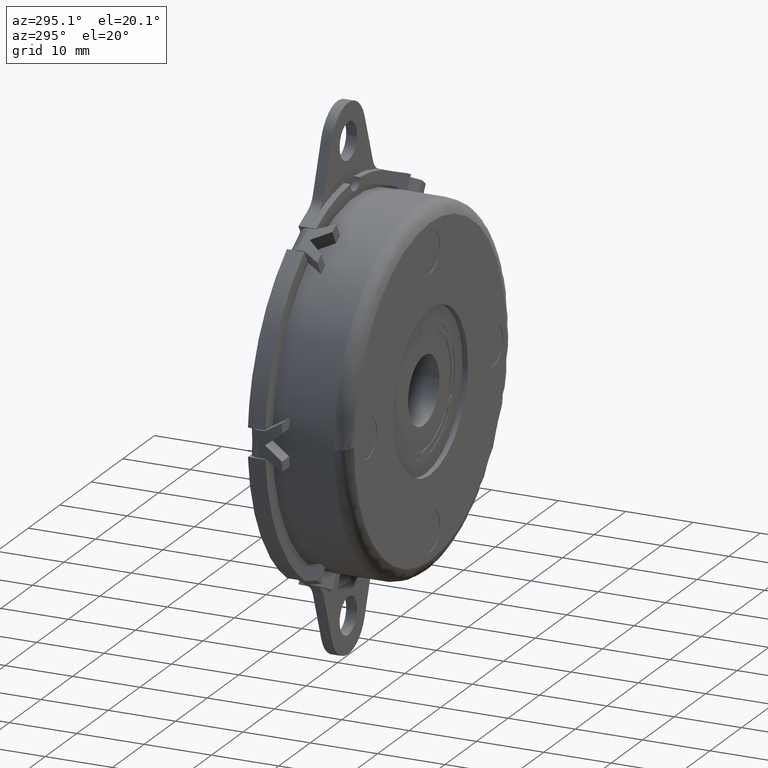
[diagram: clean part render]
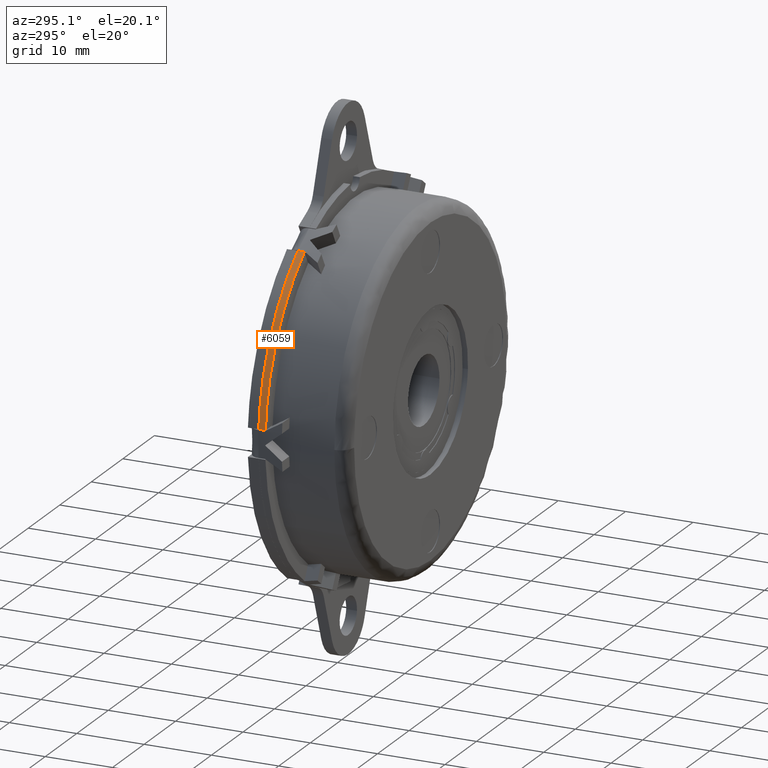
[diagram: same view with one face highlighted and labeled with its STEP entity id]
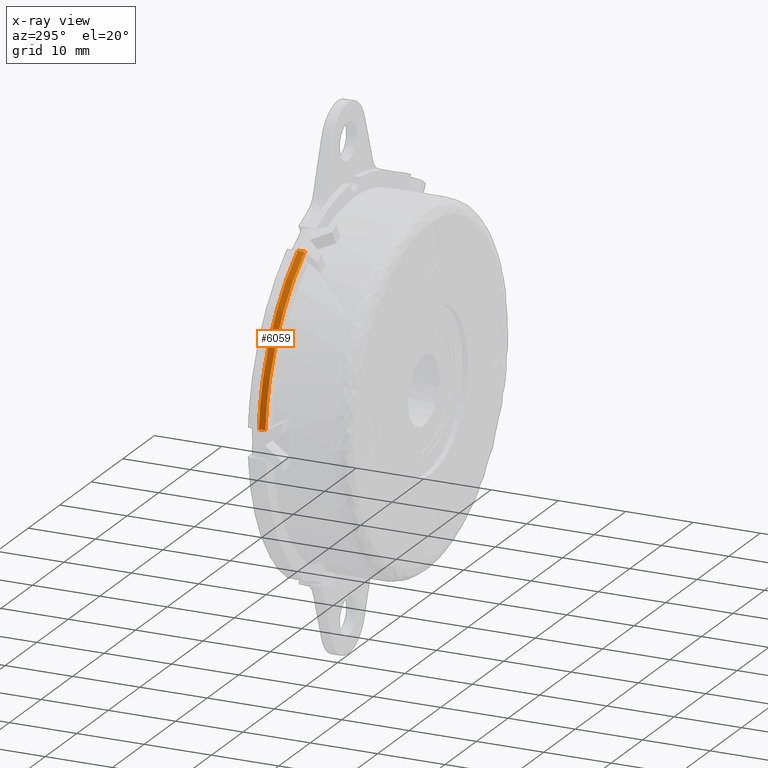
[diagram: x-ray of the same camera — body ghosted, the highlighted face saturated]
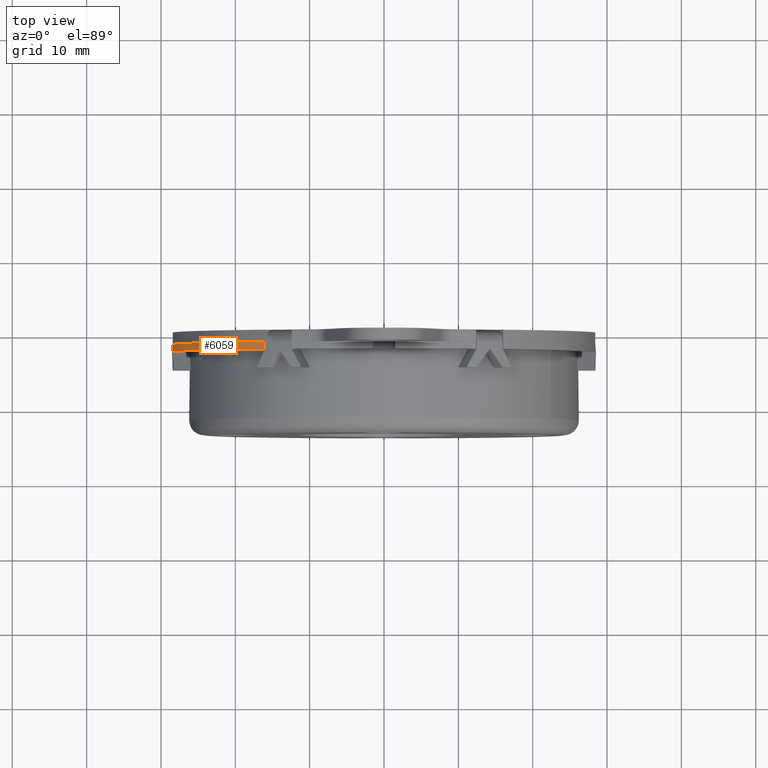
[diagram: same view with one face highlighted and labeled with its STEP entity id]
A machine part, auxiliary view. The second image highlights one B-rep face of the part: STEP entity #6059.
The next image is the same camera in x-ray: the body ghosted, the highlighted face saturated — about 0% of this face is hidden behind the body in this view.
A second angle (top view) of the same face is appended — the face is thin or edge-on in the first view.
In plain terms, the highlighted face is a freeform B-spline surface patch.
Its self-contained STEP definition (entity closure, byte-faithful):
#5968=CARTESIAN_POINT('',(-16.029916486739602,-2.600010000000000,23.564629796119299));
#5969=VERTEX_POINT('',#5968);
#5977=CARTESIAN_POINT('',(-28.422526277584851,-2.600010000000000,2.099999999999795));
#5978=VERTEX_POINT('',#5977);
#5979=CARTESIAN_POINT('',(-16.029916486739591,-2.600010000000000,23.564629796119309));
#5980=CARTESIAN_POINT('',(-27.408505005214579,-2.600010000000001,15.824307742845825));
#5981=CARTESIAN_POINT('',(-28.422526277584840,-2.600010000000000,2.099999999999795));
#5989=(BOUNDED_CURVE()B_SPLINE_CURVE(2,(#5979,#5980,#5981),.UNSPECIFIED.,.F.,.U.)CURVE()GEOMETRIC_REPRESENTATION_ITEM()QUASI_UNIFORM_CURVE()RATIONAL_B_SPLINE_CURVE((1.0,0.900513326179619,1.0))REPRESENTATION_ITEM(''));
#5990=EDGE_CURVE('',#5969,#5978,#5989,.T.);
#6015=CARTESIAN_POINT('',(-15.823668538216340,-2.624759999999999,23.703618162480218));
#6016=CARTESIAN_POINT('',(-15.823668538216340,-1.584641250000051,23.703618162480218));
#6017=CARTESIAN_POINT('',(-28.041688072943565,-2.624759999999998,15.547315188573970));
#6018=CARTESIAN_POINT('',(-28.041688072943565,-1.584641250000051,15.547315188573970));
#6019=CARTESIAN_POINT('',(-28.486908120947334,-2.624759999999999,0.863750952940186));
#6020=CARTESIAN_POINT('',(-28.486908120947334,-1.584641250000051,0.863750952940186));
#6028=(BOUNDED_SURFACE()B_SPLINE_SURFACE(1,2,((#6015,#6017,#6019),(#6016,#6018,#6020)),.UNSPECIFIED.,.F.,.F.,.U.)B_SPLINE_SURFACE_WITH_KNOTS((2,2),(3,3),(0.0,1.0),(0.0,27.651980028960779),.UNSPECIFIED.)GEOMETRIC_REPRESENTATION_ITEM()RATIONAL_B_SPLINE_SURFACE(((1.0,0.887997178134883,0.998044530788465),(1.0,0.887997178134883,0.998044530788465)))REPRESENTATION_ITEM('')SURFACE());
#6029=CARTESIAN_POINT('',(-16.029916486739602,-1.610010000000050,23.564629796119299));
#6030=VERTEX_POINT('',#6029);
#6031=CARTESIAN_POINT('',(-16.029916486739602,-2.600010000000000,23.564629796119299));
#6032=CARTESIAN_POINT('',(-16.029916486739602,-1.610010000000050,23.564629796119299));
#6033=QUASI_UNIFORM_CURVE('',1,(#6031,#6032),.UNSPECIFIED.,.F.,.U.);
#6034=EDGE_CURVE('',#5969,#6030,#6033,.T.);
#6035=ORIENTED_EDGE('',*,*,#6034,.T.);
#6036=CARTESIAN_POINT('',(-28.422526277584851,-1.610010000000050,2.099999999999780));
#6037=VERTEX_POINT('',#6036);
#6038=CARTESIAN_POINT('',(-16.029916486739609,-1.610010000000050,23.564629796119309));
#6039=CARTESIAN_POINT('',(-27.408505005214575,-1.610010000000050,15.824307742845813));
#6040=CARTESIAN_POINT('',(-28.422526277584840,-1.610010000000050,2.099999999999791));
#6048=(BOUNDED_CURVE()B_SPLINE_CURVE(2,(#6038,#6039,#6040),.UNSPECIFIED.,.F.,.U.)CURVE()GEOMETRIC_REPRESENTATION_ITEM()QUASI_UNIFORM_CURVE()RATIONAL_B_SPLINE_CURVE((1.0,0.900513326179619,1.0))REPRESENTATION_ITEM(''));
#6049=EDGE_CURVE('',#6030,#6037,#6048,.T.);
#6050=ORIENTED_EDGE('',*,*,#6049,.T.);
#6051=CARTESIAN_POINT('',(-28.422526277584851,-2.600010000000000,2.099999999999795));
#6052=CARTESIAN_POINT('',(-28.422526277584851,-1.610010000000050,2.099999999999780));
#6053=QUASI_UNIFORM_CURVE('',1,(#6051,#6052),.UNSPECIFIED.,.F.,.U.);
#6054=EDGE_CURVE('',#5978,#6037,#6053,.T.);
#6055=ORIENTED_EDGE('',*,*,#6054,.F.);
#6056=ORIENTED_EDGE('',*,*,#5990,.F.);
#6057=EDGE_LOOP('',(#6035,#6050,#6055,#6056));
#6058=FACE_OUTER_BOUND('',#6057,.T.);
#6059=ADVANCED_FACE('',(#6058),#6028,.T.);